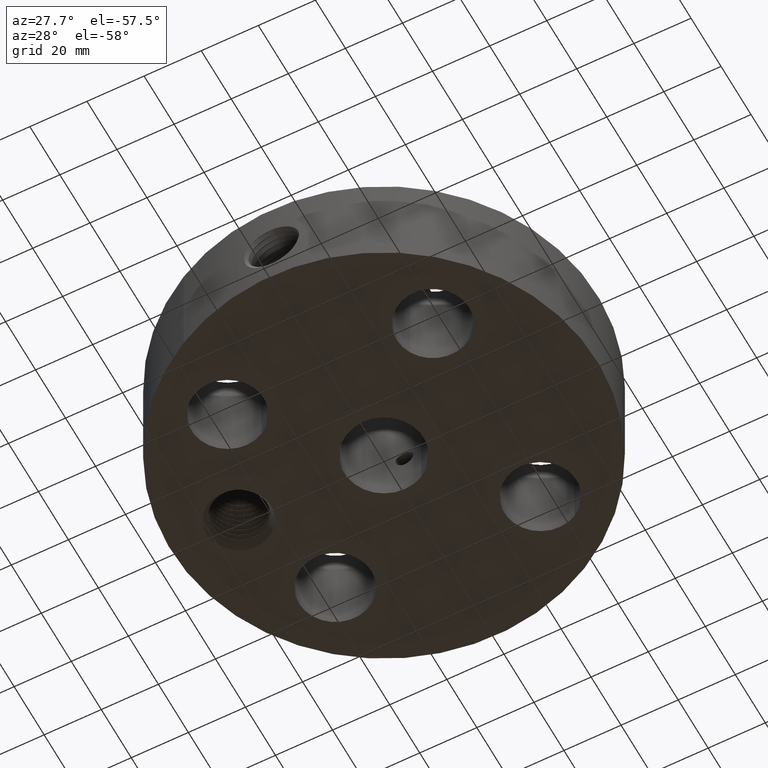
[diagram: clean part render]
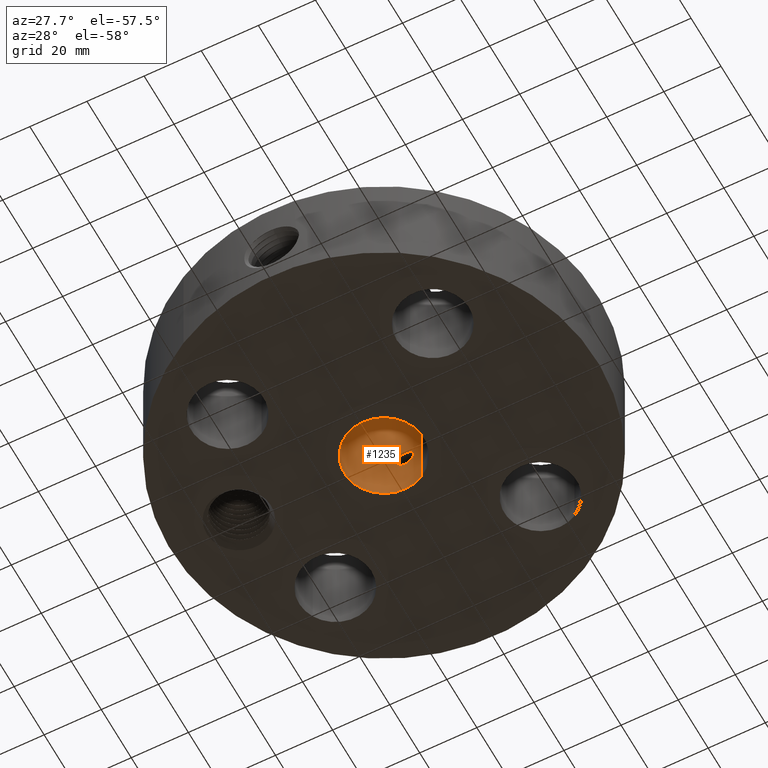
[diagram: same view with one face highlighted and labeled with its STEP entity id]
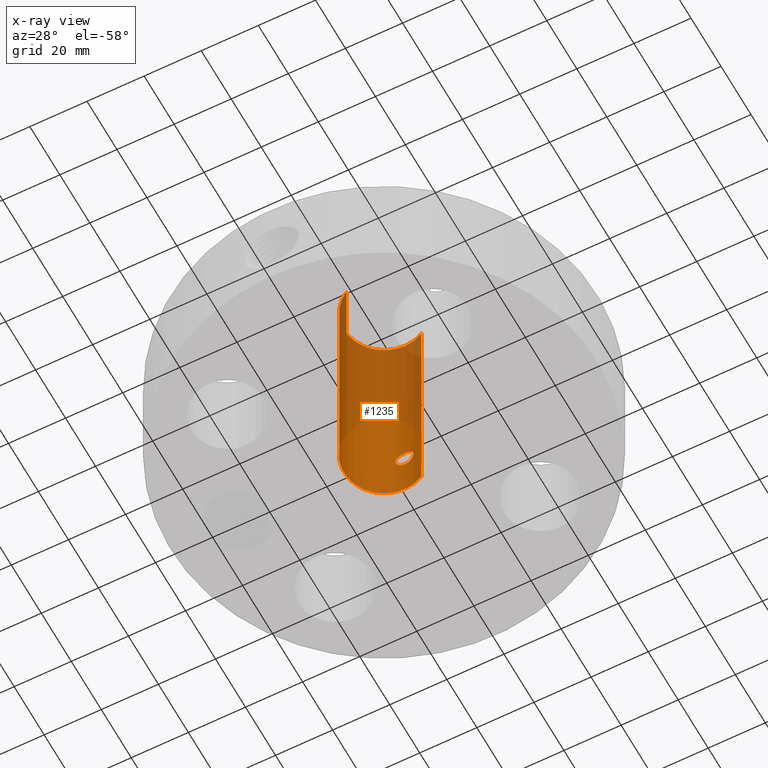
[diagram: x-ray of the same camera — body ghosted, the highlighted face saturated]
A machine part, auxiliary view. The second image highlights one B-rep face of the part: STEP entity #1235.
The next image is the same camera in x-ray: the body ghosted, the highlighted face saturated — about 56% of this face is hidden behind the body in this view.
In plain terms, the highlighted cylindrical surface (partial cylindrical patch) has radius 13.9319 mm, axis along (0, 0, -1).
Its self-contained STEP definition (entity closure, byte-faithful):
#254=AXIS2_PLACEMENT_3D('Circle Axis2P3D',#252,#253,$) ;
#1112=AXIS2_PLACEMENT_3D('Cylinder Axis2P3D',#1109,#1110,#1111) ;
#1184=AXIS2_PLACEMENT_3D('Circle Axis2P3D',#1182,#1183,$) ;
#247=CARTESIAN_POINT('Vertex',(0.262964907925,0.481354035199,0.250000000001)) ;
#249=CARTESIAN_POINT('Vertex',(-0.262964907925,-0.481354035199,0.250000000001)) ;
#252=CARTESIAN_POINT('Axis2P3D Location',(0.,0.,0.250000000001)) ;
#1109=CARTESIAN_POINT('Axis2P3D Location',(0.,0.,1.87500000001)) ;
#1118=CARTESIAN_POINT('Vertex',(0.262964907925,0.481354035199,3.50000000001)) ;
#1120=CARTESIAN_POINT('Vertex',(-0.262964907925,-0.481354035199,3.50000000001)) ;
#1123=CARTESIAN_POINT('Line Origine',(0.262964907925,0.481354035199,1.87500000001)) ;
#1128=CARTESIAN_POINT('Line Origine',(-0.262964907925,-0.481354035199,1.87500000001)) ;
#1182=CARTESIAN_POINT('Axis2P3D Location',(0.,0.,3.50000000001)) ;
#1194=CARTESIAN_POINT('Control Point',(-0.109697820237,0.537418494507,0.880071807678)) ;
#1195=CARTESIAN_POINT('Control Point',(-0.103067335952,0.53877190843,0.867934787606)) ;
#1196=CARTESIAN_POINT('Control Point',(-0.0947692780576,0.540359191075,0.856734870584)) ;
#1197=CARTESIAN_POINT('Control Point',(-0.0849741110987,0.54203938782,0.84676005271)) ;
#1198=CARTESIAN_POINT('Control Point',(-0.0556321136792,0.546263345503,0.824183076502)) ;
#1199=CARTESIAN_POINT('Control Point',(-0.0194711013366,0.548896485681,0.813249176114)) ;
#1200=CARTESIAN_POINT('Control Point',(0.00442353275519,0.549258241032,0.811825999291)) ;
#1201=CARTESIAN_POINT('Control Point',(0.0534044893596,0.547053451989,0.820539306)) ;
#1202=CARTESIAN_POINT('Control Point',(0.092979849821,0.541117492993,0.85065899039)) ;
#1203=CARTESIAN_POINT('Control Point',(0.109256659173,0.537669514089,0.871449175762)) ;
#1204=CARTESIAN_POINT('Control Point',(0.126227903507,0.533809465879,0.91108755315)) ;
#1205=CARTESIAN_POINT('Control Point',(0.125904763066,0.533844140944,0.953559572303)) ;
#1206=CARTESIAN_POINT('Control Point',(0.123016801994,0.53455170038,0.969999932408)) ;
#1207=CARTESIAN_POINT('Control Point',(0.117516814889,0.535822481942,0.985615618622)) ;
#1208=CARTESIAN_POINT('Control Point',(0.109697820237,0.537418494507,0.99992819233)) ;
#1209=CARTESIAN_POINT('Vertex',(-0.109697820237,0.537418494507,0.880071807678)) ;
#1211=CARTESIAN_POINT('Vertex',(0.109697820237,0.537418494507,0.99992819233)) ;
#1215=CARTESIAN_POINT('Control Point',(-0.109697820237,0.537418494507,0.880071807678)) ;
#1216=CARTESIAN_POINT('Control Point',(-0.11624291912,0.536082509444,0.892052530822)) ;
#1217=CARTESIAN_POINT('Control Point',(-0.121163095122,0.534974412946,0.904946341692)) ;
#1218=CARTESIAN_POINT('Control Point',(-0.12428733908,0.534232272797,0.918466942231)) ;
#1219=CARTESIAN_POINT('Control Point',(-0.127557173003,0.53347069833,0.955300025204)) ;
#1220=CARTESIAN_POINT('Control Point',(-0.11743219547,0.53583292393,0.991458359339)) ;
#1221=CARTESIAN_POINT('Control Point',(-0.105971830721,0.538462861063,1.01208197233)) ;
#1222=CARTESIAN_POINT('Control Point',(-0.0745677606836,0.544235315715,1.04675793869)) ;
#1223=CARTESIAN_POINT('Control Point',(-0.0310416341589,0.548326227973,1.06442519208)) ;
#1224=CARTESIAN_POINT('Control Point',(-0.00735163946584,0.549241899258,1.06805896676)) ;
#1225=CARTESIAN_POINT('Control Point',(0.0357937509952,0.548249622936,1.06440000362)) ;
#1226=CARTESIAN_POINT('Control Point',(0.0733255814745,0.543961766801,1.04394218033)) ;
#1227=CARTESIAN_POINT('Control Point',(0.0882980596731,0.541585013359,1.03154929966)) ;
#1228=CARTESIAN_POINT('Control Point',(0.100576010832,0.539280437515,1.01662555244)) ;
#1229=CARTESIAN_POINT('Control Point',(0.109697820237,0.537418494507,0.99992819233)) ;
#253=DIRECTION('Axis2P3D Direction',(0.,0.,-0.0393700787402)) ;
#1110=DIRECTION('Axis2P3D Direction',(0.,0.,-0.0393700787402)) ;
#1111=DIRECTION('Axis2P3D XDirection',(-0.0188750212049,-0.0345504945626,0.)) ;
#1124=DIRECTION('Vector Direction',(0.,0.,-0.0393700787402)) ;
#1129=DIRECTION('Vector Direction',(0.,0.,-0.0393700787402)) ;
#1183=DIRECTION('Axis2P3D Direction',(0.,0.,-0.0393700787402)) ;
#1125=VECTOR('Line Direction',#1124,0.0393700787402) ;
#1130=VECTOR('Line Direction',#1129,0.0393700787402) ;
#1188=ORIENTED_EDGE('',*,*,#1186,.F.) ;
#1189=ORIENTED_EDGE('',*,*,#1132,.T.) ;
#1190=ORIENTED_EDGE('',*,*,#256,.T.) ;
#1191=ORIENTED_EDGE('',*,*,#1127,.F.) ;
#1232=ORIENTED_EDGE('',*,*,#1213,.F.) ;
#1233=ORIENTED_EDGE('',*,*,#1230,.T.) ;
#1234=FACE_BOUND('',#1231,.T.) ;
#1235=ADVANCED_FACE('PartBody',(#1192,#1234),#1113,.F.) ;
#1193=B_SPLINE_CURVE_WITH_KNOTS('',5,(#1194,#1195,#1196,#1197,#1198,#1199,#1200,#1201,#1202,#1203,#1204,#1205,#1206,#1207,#1208),.UNSPECIFIED.,.F.,.U.,(6,3,3,3,6),(0.,2.49581534362,6.62922007835,11.2094512145,14.1526399754),.UNSPECIFIED.) ;
#1214=B_SPLINE_CURVE_WITH_KNOTS('',5,(#1215,#1216,#1217,#1218,#1219,#1220,#1221,#1222,#1223,#1224,#1225,#1226,#1227,#1228,#1229),.UNSPECIFIED.,.F.,.U.,(6,3,3,3,6),(0.,2.4636749773,6.57791823404,10.7194703253,14.1530584157),.UNSPECIFIED.) ;
#255=CIRCLE('generated circle',#254,0.548500000002) ;
#1185=CIRCLE('generated circle',#1184,0.548500000002) ;
#1113=CYLINDRICAL_SURFACE('generated cylinder',#1112,0.548500000002) ;
#256=EDGE_CURVE('',#250,#248,#255,.T.) ;
#1127=EDGE_CURVE('',#1119,#248,#1126,.T.) ;
#1132=EDGE_CURVE('',#1121,#250,#1131,.T.) ;
#1186=EDGE_CURVE('',#1121,#1119,#1185,.T.) ;
#1213=EDGE_CURVE('',#1210,#1212,#1193,.T.) ;
#1230=EDGE_CURVE('',#1210,#1212,#1214,.T.) ;
#1187=EDGE_LOOP('',(#1188,#1189,#1190,#1191)) ;
#1231=EDGE_LOOP('',(#1232,#1233)) ;
#1192=FACE_OUTER_BOUND('',#1187,.T.) ;
#1126=LINE('Line',#1123,#1125) ;
#1131=LINE('Line',#1128,#1130) ;
#248=VERTEX_POINT('',#247) ;
#250=VERTEX_POINT('',#249) ;
#1119=VERTEX_POINT('',#1118) ;
#1121=VERTEX_POINT('',#1120) ;
#1210=VERTEX_POINT('',#1209) ;
#1212=VERTEX_POINT('',#1211) ;